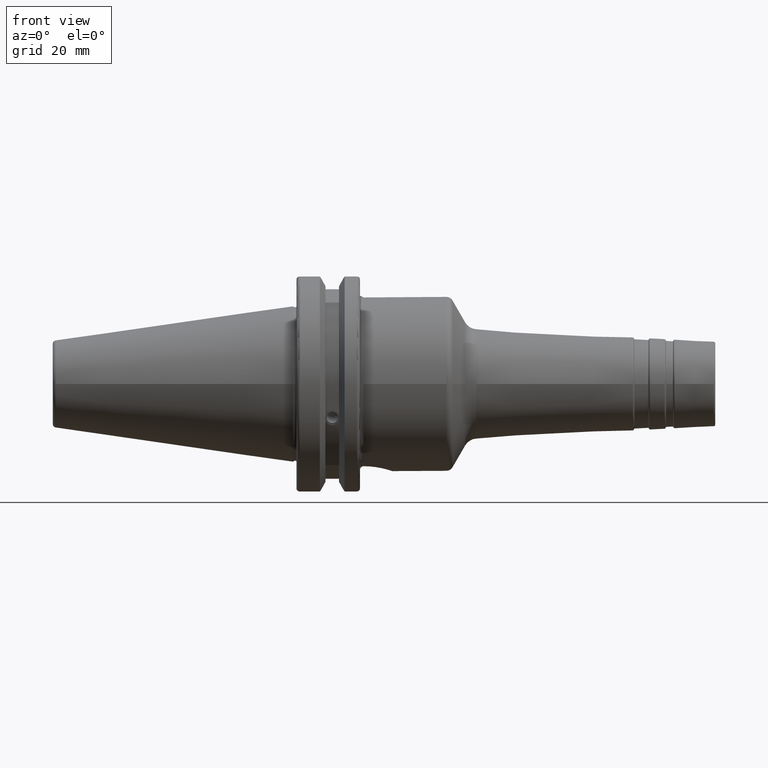
[diagram: clean part render]
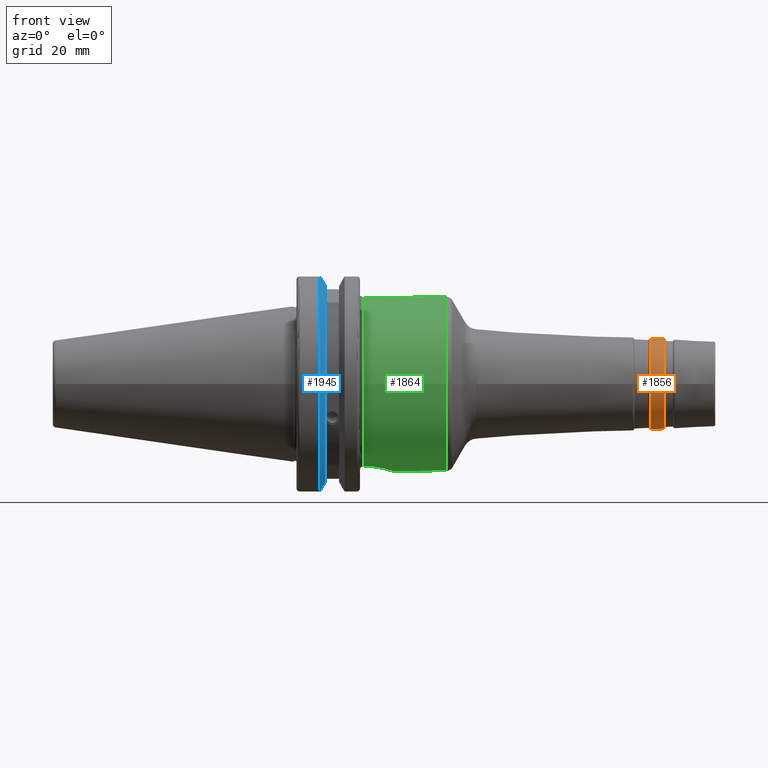
[diagram: same view with three faces highlighted in distinct colors, each labeled with its STEP entity id]
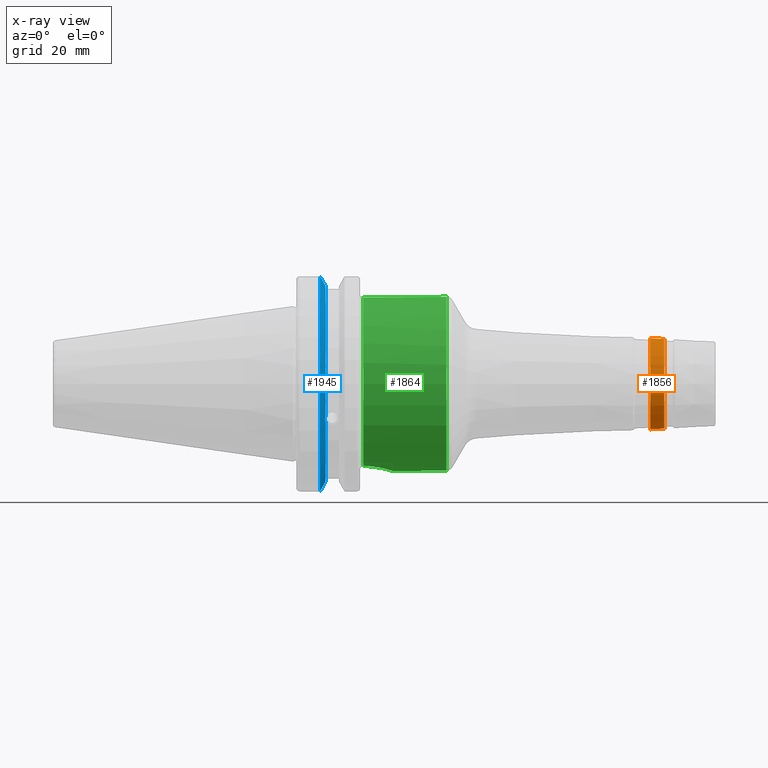
[diagram: x-ray of the same camera — body ghosted, the three highlighted faces saturated]
A machine part, front view with three faces highlighted in distinct colors.
The next image is the same camera in x-ray (body ghosted, the three faces saturated) — at least one of them is partly hidden behind the body in this view.
Their STEP definitions:

[orange] entity #1856 — the highlighted conical surface has half-angle 3 deg.
#175=LINE('',#2925,#270);
#270=VECTOR('',#2338,12.8630337488681);
#365=CONICAL_SURFACE('',#2023,12.8630337488681,0.0523598775598295);
#395=FACE_OUTER_BOUND('',#503,.T.);
#503=EDGE_LOOP('',(#1311,#1312,#1313,#1314,#1315,#1316));
#647=CIRCLE('',#2021,12.7593884188434);
#648=CIRCLE('',#2022,12.7593884188434);
#649=CIRCLE('',#2024,12.9666790788928);
#650=CIRCLE('',#2025,12.9666790788928);
#770=VERTEX_POINT('',#2918);
#771=VERTEX_POINT('',#2920);
#772=VERTEX_POINT('',#2924);
#773=VERTEX_POINT('',#2926);
#978=EDGE_CURVE('',#770,#771,#647,.T.);
#979=EDGE_CURVE('',#771,#770,#648,.T.);
#980=EDGE_CURVE('',#771,#772,#175,.T.);
#981=EDGE_CURVE('',#773,#772,#649,.T.);
#982=EDGE_CURVE('',#772,#773,#650,.T.);
#1311=ORIENTED_EDGE('',*,*,#979,.F.);
#1312=ORIENTED_EDGE('',*,*,#980,.T.);
#1313=ORIENTED_EDGE('',*,*,#981,.F.);
#1314=ORIENTED_EDGE('',*,*,#982,.F.);
#1315=ORIENTED_EDGE('',*,*,#980,.F.);
#1316=ORIENTED_EDGE('',*,*,#978,.F.);
#1856=ADVANCED_FACE('',(#395),#365,.T.);
#2021=AXIS2_PLACEMENT_3D('',#2921,#2332,#2333);
#2022=AXIS2_PLACEMENT_3D('',#2922,#2334,#2335);
#2023=AXIS2_PLACEMENT_3D('',#2923,#2336,#2337);
#2024=AXIS2_PLACEMENT_3D('',#2927,#2339,#2340);
#2025=AXIS2_PLACEMENT_3D('',#2928,#2341,#2342);
#2332=DIRECTION('center_axis',(1.,0.,0.));
#2333=DIRECTION('ref_axis',(0.,-1.,3.06161699786838E-17));
#2334=DIRECTION('center_axis',(1.,0.,0.));
#2335=DIRECTION('ref_axis',(0.,-1.,3.06161699786838E-17));
#2336=DIRECTION('center_axis',(-1.,0.,0.));
#2337=DIRECTION('ref_axis',(0.,1.,0.));
#2338=DIRECTION('',(-0.998629534754574,-0.0523359562429434,-6.40930612932366E-18));
#2339=DIRECTION('center_axis',(-1.,0.,0.));
#2340=DIRECTION('ref_axis',(0.,-1.,3.06161699786838E-17));
#2341=DIRECTION('center_axis',(-1.,0.,0.));
#2342=DIRECTION('ref_axis',(0.,-1.,3.06161699786838E-17));
#2918=CARTESIAN_POINT('',(105.510005780972,-1.56257441862143E-15,12.7593884188434));
#2920=CARTESIAN_POINT('',(105.510005780972,-12.7593884188434,-1.56257441862143E-15));
#2921=CARTESIAN_POINT('Origin',(105.510005780972,0.,-1.95321802327679E-15));
#2922=CARTESIAN_POINT('Origin',(105.510005780972,0.,-1.95321802327679E-15));
#2923=CARTESIAN_POINT('Origin',(103.532335071726,0.,0.));
#2924=CARTESIAN_POINT('',(101.55466436248,-12.9666790788928,-1.5879602029537E-15));
#2925=CARTESIAN_POINT('',(103.532335071726,-12.8630337488681,-1.57526731078757E-15));
#2926=CARTESIAN_POINT('',(101.55466436248,-1.5879602029537E-15,12.9666790788928));
#2927=CARTESIAN_POINT('Origin',(101.55466436248,0.,-1.98495025369213E-15));
#2928=CARTESIAN_POINT('Origin',(101.55466436248,0.,-1.98495025369213E-15));

[blue] entity #1945 — the highlighted conical surface has half-angle 60 deg.
#25=(
BOUNDED_CURVE()
B_SPLINE_CURVE(2,(#3623,#3624,#3625),.UNSPECIFIED.,.F.,.F.)
B_SPLINE_CURVE_WITH_KNOTS((3,3),(0.,0.27654914279601),.UNSPECIFIED.)
CURVE()
GEOMETRIC_REPRESENTATION_ITEM()
RATIONAL_B_SPLINE_CURVE((1.,1.00095203903532,1.00031614444885))
REPRESENTATION_ITEM('')
);
#26=(
BOUNDED_CURVE()
B_SPLINE_CURVE(2,(#3635,#3636,#3637),.UNSPECIFIED.,.F.,.F.)
B_SPLINE_CURVE_WITH_KNOTS((3,3),(0.0550586467392668,0.331607789535851),
 .UNSPECIFIED.)
CURVE()
GEOMETRIC_REPRESENTATION_ITEM()
RATIONAL_B_SPLINE_CURVE((1.0003161444496,1.00095203903759,1.))
REPRESENTATION_ITEM('')
);
#27=(
BOUNDED_CURVE()
B_SPLINE_CURVE(2,(#3685,#3686,#3687),.UNSPECIFIED.,.F.,.F.)
B_SPLINE_CURVE_WITH_KNOTS((3,3),(0.,0.0639048713675873),.UNSPECIFIED.)
CURVE()
GEOMETRIC_REPRESENTATION_ITEM()
RATIONAL_B_SPLINE_CURVE((1.,1.00028444218292,1.00047644010589))
REPRESENTATION_ITEM('')
);
#28=(
BOUNDED_CURVE()
B_SPLINE_CURVE(2,(#3738,#3739,#3740),.UNSPECIFIED.,.F.,.F.)
B_SPLINE_CURVE_WITH_KNOTS((3,3),(0.329353533631225,0.393258405001025),
 .UNSPECIFIED.)
CURVE()
GEOMETRIC_REPRESENTATION_ITEM()
RATIONAL_B_SPLINE_CURVE((1.00047644010574,1.00028444218284,1.))
REPRESENTATION_ITEM('')
);
#93=B_SPLINE_CURVE_WITH_KNOTS('',3,(#3238,#3239,#3240,#3241,#3242,#3243,
#3244,#3245,#3246,#3247,#3248,#3249,#3250,#3251),.UNSPECIFIED.,.F.,.F.,
(4,2,2,2,2,2,4),(0.451995700189025,0.464547828547661,0.504528771685166,
0.544509714822671,0.584490657960176,0.624471601097681,0.637023729456317),
 .UNSPECIFIED.);
#381=CONICAL_SURFACE('',#2219,30.3546886482472,1.0471975511966);
#484=FACE_OUTER_BOUND('',#606,.T.);
#606=EDGE_LOOP('',(#1799,#1800,#1801,#1802,#1803,#1804,#1805,#1806));
#696=CIRCLE('',#2115,28.9593772964944);
#737=CIRCLE('',#2218,31.75);
#738=CIRCLE('',#2220,28.9593772964944);
#828=VERTEX_POINT('',#3235);
#829=VERTEX_POINT('',#3237);
#846=VERTEX_POINT('',#3330);
#900=VERTEX_POINT('',#3620);
#901=VERTEX_POINT('',#3622);
#904=VERTEX_POINT('',#3634);
#914=VERTEX_POINT('',#3683);
#923=VERTEX_POINT('',#3737);
#1061=EDGE_CURVE('',#829,#828,#93,.T.);
#1085=EDGE_CURVE('',#829,#846,#696,.T.);
#1160=EDGE_CURVE('',#901,#900,#25,.T.);
#1166=EDGE_CURVE('',#904,#846,#26,.T.);
#1182=EDGE_CURVE('',#914,#900,#27,.T.);
#1197=EDGE_CURVE('',#904,#923,#28,.T.);
#1227=EDGE_CURVE('',#914,#923,#737,.T.);
#1228=EDGE_CURVE('',#901,#828,#738,.T.);
#1799=ORIENTED_EDGE('',*,*,#1061,.T.);
#1800=ORIENTED_EDGE('',*,*,#1228,.F.);
#1801=ORIENTED_EDGE('',*,*,#1160,.T.);
#1802=ORIENTED_EDGE('',*,*,#1182,.F.);
#1803=ORIENTED_EDGE('',*,*,#1227,.T.);
#1804=ORIENTED_EDGE('',*,*,#1197,.F.);
#1805=ORIENTED_EDGE('',*,*,#1166,.T.);
#1806=ORIENTED_EDGE('',*,*,#1085,.F.);
#1945=ADVANCED_FACE('',(#484),#381,.T.);
#2115=AXIS2_PLACEMENT_3D('',#3331,#2551,#2552);
#2218=AXIS2_PLACEMENT_3D('',#3811,#2813,#2814);
#2219=AXIS2_PLACEMENT_3D('',#3812,#2815,#2816);
#2220=AXIS2_PLACEMENT_3D('',#3813,#2817,#2818);
#2551=DIRECTION('center_axis',(1.,0.,0.));
#2552=DIRECTION('ref_axis',(0.,0.,-1.));
#2813=DIRECTION('center_axis',(1.,0.,0.));
#2814=DIRECTION('ref_axis',(0.,0.,-1.));
#2815=DIRECTION('center_axis',(-1.,0.,0.));
#2816=DIRECTION('ref_axis',(0.,-1.,-1.22464679914735E-16));
#2817=DIRECTION('center_axis',(1.,0.,0.));
#2818=DIRECTION('ref_axis',(0.,0.,-1.));
#3235=CARTESIAN_POINT('',(9.261,-27.4956274489925,-9.09043478536247));
#3237=CARTESIAN_POINT('',(9.261,-26.9060914640648,-10.7101715919071));
#3238=CARTESIAN_POINT('Ctrl Pts',(9.26099999999999,-26.9060914640648,-10.7101715919071));
#3239=CARTESIAN_POINT('Ctrl Pts',(9.24687959280038,-26.9406927482839,-10.6893765730703));
#3240=CARTESIAN_POINT('Ctrl Pts',(9.23340701821433,-26.9744191989197,-10.6676007180673));
#3241=CARTESIAN_POINT('Ctrl Pts',(9.18001855884095,-27.1113422433189,-10.5723885976054));
#3242=CARTESIAN_POINT('Ctrl Pts',(9.14188029158246,-27.2180531796526,-10.4801333026531));
#3243=CARTESIAN_POINT('Ctrl Pts',(9.08968935539424,-27.3968610665578,-10.2639559818059));
#3244=CARTESIAN_POINT('Ctrl Pts',(9.076,-27.4684373304961,-10.139516340139));
#3245=CARTESIAN_POINT('Ctrl Pts',(9.076,-27.559599249844,-9.8890510252165));
#3246=CARTESIAN_POINT('Ctrl Pts',(9.08968935539424,-27.5847569104122,-9.74771639360671));
#3247=CARTESIAN_POINT('Ctrl Pts',(9.14188029158246,-27.5867382255984,-9.46717946402648));
#3248=CARTESIAN_POINT('Ctrl Pts',(9.18001855884095,-27.5642934663232,-9.32791534028656));
#3249=CARTESIAN_POINT('Ctrl Pts',(9.23340701821433,-27.5206055003512,-9.16696618806878));
#3250=CARTESIAN_POINT('Ctrl Pts',(9.24687959280038,-27.5087667900418,-9.12860597076218));
#3251=CARTESIAN_POINT('Ctrl Pts',(9.261,-27.4956274489925,-9.09043478536247));
#3330=CARTESIAN_POINT('',(9.261,-8.19,-27.7771386827498));
#3331=CARTESIAN_POINT('Origin',(9.261,0.,0.));
#3620=CARTESIAN_POINT('',(7.92858530351256,-8.19,30.1755016258903));
#3622=CARTESIAN_POINT('',(9.261,-8.19,27.7771386827498));
#3623=CARTESIAN_POINT('Ctrl Pts',(9.261,-8.19,27.7771386827498));
#3624=CARTESIAN_POINT('Ctrl Pts',(8.62236356152083,-8.19,28.930368953976));
#3625=CARTESIAN_POINT('Ctrl Pts',(7.92858530351256,-8.19,30.1755016258903));
#3634=CARTESIAN_POINT('',(7.92858530351256,-8.19,-30.1755016258903));
#3635=CARTESIAN_POINT('Ctrl Pts',(7.92858530351256,-8.19,-30.1755016258903));
#3636=CARTESIAN_POINT('Ctrl Pts',(8.62236356152658,-8.19,-28.9303689539657));
#3637=CARTESIAN_POINT('Ctrl Pts',(9.261,-8.19,-27.7771386827498));
#3683=CARTESIAN_POINT('',(7.64983323092436,-8.67204822802685,30.5427254764662));
#3685=CARTESIAN_POINT('Ctrl Pts',(7.64983323092436,-8.67204822802685,30.5427254764662));
#3686=CARTESIAN_POINT('Ctrl Pts',(7.79089148121629,-8.42917748262643,30.357706789263));
#3687=CARTESIAN_POINT('Ctrl Pts',(7.92858530351256,-8.19,30.1755016258903));
#3737=CARTESIAN_POINT('',(7.64983323092436,-8.67204822802685,-30.5427254764662));
#3738=CARTESIAN_POINT('Ctrl Pts',(7.92858530351256,-8.19,-30.1755016258903));
#3739=CARTESIAN_POINT('Ctrl Pts',(7.7908914812116,-8.42917748263465,-30.3577067892692));
#3740=CARTESIAN_POINT('Ctrl Pts',(7.64983323092436,-8.67204822802686,-30.5427254764662));
#3811=CARTESIAN_POINT('Origin',(7.64983323092436,0.,0.));
#3812=CARTESIAN_POINT('Origin',(8.45541661546218,0.,0.));
#3813=CARTESIAN_POINT('Origin',(9.261,0.,0.));

[green] entity #1864 — the highlighted cylindrical surface (bore or boss wall) has radius 24.75 mm, axis along (1, 0, 0).
#51=CYLINDRICAL_SURFACE('',#2047,24.75);
#85=B_SPLINE_CURVE_WITH_KNOTS('',3,(#3005,#3006,#3007,#3008,#3009,#3010,
#3011,#3012,#3013,#3014,#3015,#3016,#3017,#3018,#3019,#3020,#3021,#3022),
 .UNSPECIFIED.,.F.,.F.,(4,2,2,2,2,2,2,2,4),(-2.48845986202559,-2.17733241913027,
-1.86620497623495,-1.55521745362387,-1.24422993101279,-0.933242408401713,
-0.622254885790634,-0.311127442895317,0.),.UNSPECIFIED.);
#180=LINE('',#3004,#275);
#275=VECTOR('',#2393,24.75);
#403=FACE_OUTER_BOUND('',#512,.T.);
#512=EDGE_LOOP('',(#1354,#1355,#1356,#1357,#1358,#1359,#1360));
#661=CIRCLE('',#2042,24.75);
#662=CIRCLE('',#2043,24.75);
#665=CIRCLE('',#2048,24.75);
#666=CIRCLE('',#2049,24.75);
#783=VERTEX_POINT('',#2965);
#784=VERTEX_POINT('',#2976);
#785=VERTEX_POINT('',#2978);
#790=VERTEX_POINT('',#3001);
#791=VERTEX_POINT('',#3002);
#996=EDGE_CURVE('',#783,#784,#661,.T.);
#997=EDGE_CURVE('',#784,#785,#662,.T.);
#1004=EDGE_CURVE('',#790,#791,#665,.T.);
#1005=EDGE_CURVE('',#790,#784,#180,.T.);
#1006=EDGE_CURVE('',#783,#785,#85,.T.);
#1007=EDGE_CURVE('',#791,#790,#666,.T.);
#1354=ORIENTED_EDGE('',*,*,#1004,.F.);
#1355=ORIENTED_EDGE('',*,*,#1005,.T.);
#1356=ORIENTED_EDGE('',*,*,#996,.F.);
#1357=ORIENTED_EDGE('',*,*,#1006,.T.);
#1358=ORIENTED_EDGE('',*,*,#997,.F.);
#1359=ORIENTED_EDGE('',*,*,#1005,.F.);
#1360=ORIENTED_EDGE('',*,*,#1007,.F.);
#1864=ADVANCED_FACE('',(#403),#51,.T.);
#2042=AXIS2_PLACEMENT_3D('',#2977,#2376,#2377);
#2043=AXIS2_PLACEMENT_3D('',#2979,#2378,#2379);
#2047=AXIS2_PLACEMENT_3D('',#3000,#2389,#2390);
#2048=AXIS2_PLACEMENT_3D('',#3003,#2391,#2392);
#2049=AXIS2_PLACEMENT_3D('',#3023,#2394,#2395);
#2376=DIRECTION('center_axis',(-1.,0.,0.));
#2377=DIRECTION('ref_axis',(0.,6.12323399573677E-17,1.));
#2378=DIRECTION('center_axis',(-1.,0.,0.));
#2379=DIRECTION('ref_axis',(0.,6.12323399573677E-17,1.));
#2389=DIRECTION('center_axis',(1.,0.,0.));
#2390=DIRECTION('ref_axis',(0.,1.,0.));
#2391=DIRECTION('center_axis',(1.,0.,0.));
#2392=DIRECTION('ref_axis',(0.,-1.,1.83697019872103E-16));
#2393=DIRECTION('',(-1.,0.,0.));
#2394=DIRECTION('center_axis',(1.,0.,0.));
#2395=DIRECTION('ref_axis',(0.,-1.,1.83697019872103E-16));
#2965=CARTESIAN_POINT('',(20.05,-8.19,-23.3556502799644));
#2976=CARTESIAN_POINT('',(20.05,-24.75,-3.0310008278897E-15));
#2977=CARTESIAN_POINT('Origin',(20.05,0.,0.));
#2978=CARTESIAN_POINT('',(20.05,8.19,-23.3556502799644));
#2979=CARTESIAN_POINT('Origin',(20.05,0.,0.));
#3000=CARTESIAN_POINT('Origin',(31.9034096256004,0.,0.));
#3001=CARTESIAN_POINT('',(43.6021187128216,-24.75,-3.0310008278897E-15));
#3002=CARTESIAN_POINT('',(43.6021187128216,-3.0310008278897E-15,24.75));
#3003=CARTESIAN_POINT('Origin',(43.6021187128216,0.,0.));
#3004=CARTESIAN_POINT('',(31.9034096256004,-24.75,-3.0310008278897E-15));
#3005=CARTESIAN_POINT('Ctrl Pts',(20.05,-8.19,-23.3556502799644));
#3006=CARTESIAN_POINT('Ctrl Pts',(21.0870914763177,-8.19,-23.3556502799644));
#3007=CARTESIAN_POINT('Ctrl Pts',(22.1874172494719,-7.98112852617488,-23.4319820145953));
#3008=CARTESIAN_POINT('Ctrl Pts',(24.2026226557734,-7.14301766428652,-23.7009173446597));
#3009=CARTESIAN_POINT('Ctrl Pts',(25.1182638848105,-6.51414519102516,-23.8889373554493));
#3010=CARTESIAN_POINT('Ctrl Pts',(26.563820070037,-5.06858900579863,-24.2368381566145));
#3011=CARTESIAN_POINT('Ctrl Pts',(27.1929429534371,-4.15281808103606,-24.420258379043));
#3012=CARTESIAN_POINT('Ctrl Pts',(28.0312404144778,-2.13713243178097,-24.6784841969773));
#3013=CARTESIAN_POINT('Ctrl Pts',(28.24,-1.03662507537027,-24.75));
#3014=CARTESIAN_POINT('Ctrl Pts',(28.24,1.03662507537027,-24.75));
#3015=CARTESIAN_POINT('Ctrl Pts',(28.0312404144778,2.13713243178098,-24.6784841969773));
#3016=CARTESIAN_POINT('Ctrl Pts',(27.1929429534371,4.15281808103607,-24.420258379043));
#3017=CARTESIAN_POINT('Ctrl Pts',(26.563820070037,5.06858900579863,-24.2368381566145));
#3018=CARTESIAN_POINT('Ctrl Pts',(25.1182638848105,6.51414519102516,-23.8889373554493));
#3019=CARTESIAN_POINT('Ctrl Pts',(24.2026226557734,7.14301766428652,-23.7009173446597));
#3020=CARTESIAN_POINT('Ctrl Pts',(22.1874172494719,7.98112852617489,-23.4319820145953));
#3021=CARTESIAN_POINT('Ctrl Pts',(21.0870914763177,8.19,-23.3556502799644));
#3022=CARTESIAN_POINT('Ctrl Pts',(20.05,8.19,-23.3556502799644));
#3023=CARTESIAN_POINT('Origin',(43.6021187128216,0.,0.));